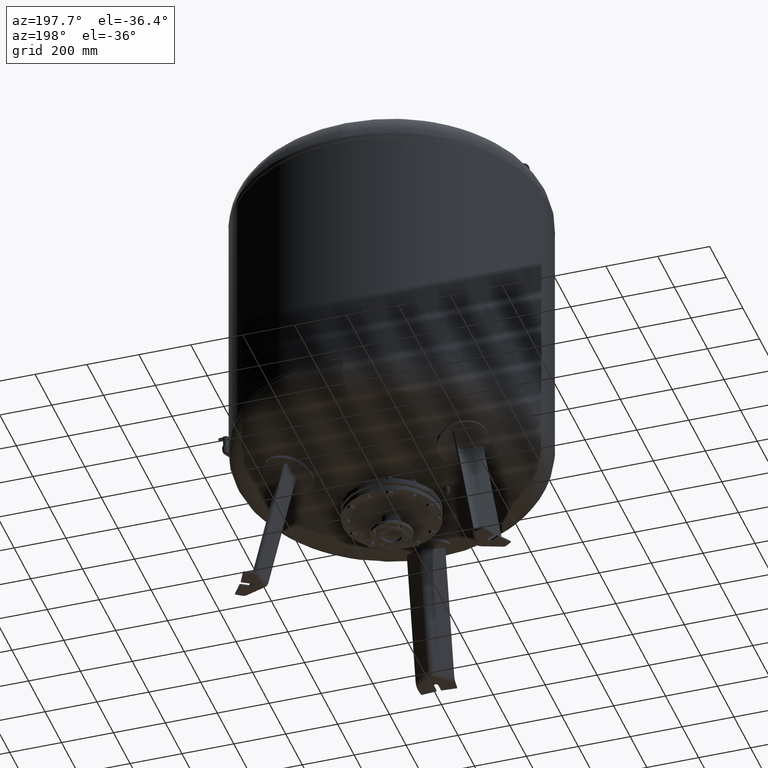
[diagram: clean part render]
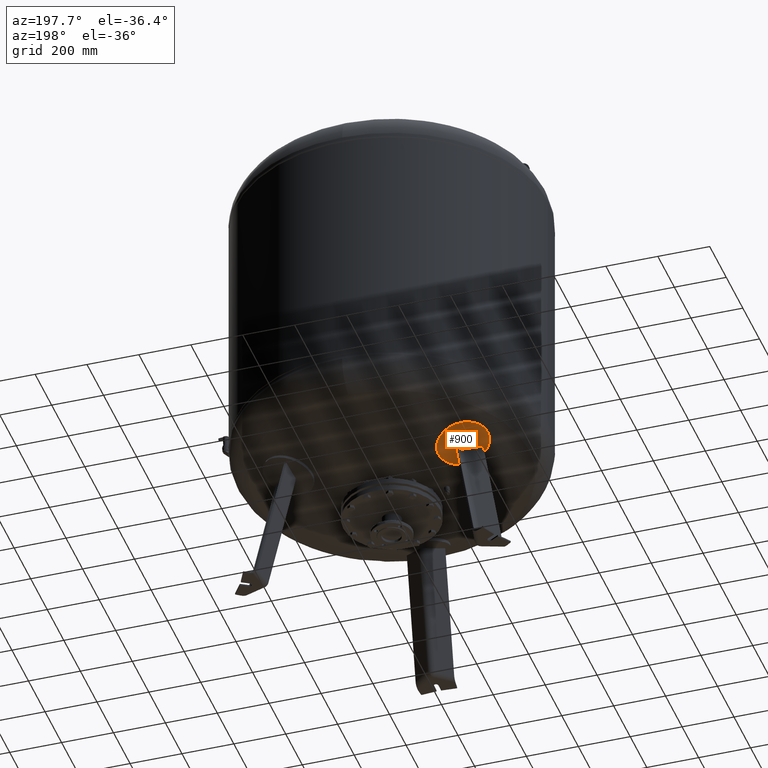
[diagram: same view with one face highlighted and labeled with its STEP entity id]
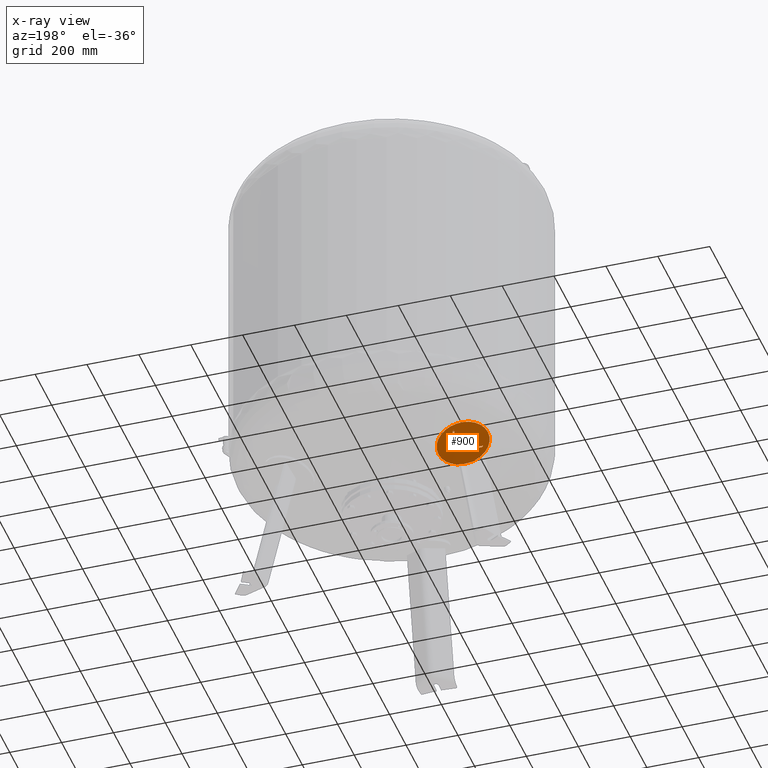
[diagram: x-ray of the same camera — body ghosted, the highlighted face saturated]
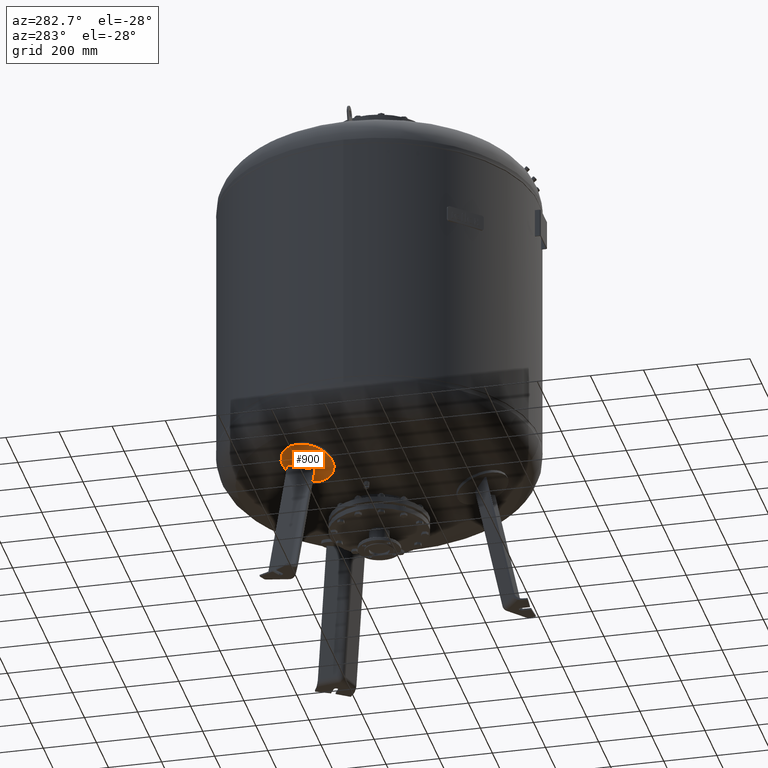
[diagram: same view with one face highlighted and labeled with its STEP entity id]
A machine part, auxiliary view. The second image highlights one B-rep face of the part: STEP entity #900.
The next image is the same camera in x-ray: the body ghosted, the highlighted face saturated — about 0% of this face is hidden behind the body in this view.
A second angle (auxiliary view) of the same face is appended — the face is thin or edge-on in the first view.
In plain terms, the highlighted spherical surface has radius 1006 mm.
Its self-contained STEP definition (entity closure, byte-faithful):
#130=CARTESIAN_POINT('',(-255.276761255100330,147.192965508267260,486.033440505856840));
#131=VERTEX_POINT('',#130);
#140=CARTESIAN_POINT('',(-419.045382498917260,241.744823068198970,551.147071397288300));
#141=VERTEX_POINT('',#140);
#142=CARTESIAN_POINT('',(-337.161071877008910,194.468894288233170,518.590255951572660));
#143=DIRECTION('',(-0.281950292423114,0.162784077228579,-0.945518575599317));
#144=DIRECTION('',(0.818843106219085,-0.472759287799659,-0.325568154457157));
#145=AXIS2_PLACEMENT_3D('',#142,#143,#144);
#146=CIRCLE('',#145,100.0);
#147=EDGE_CURVE('',#141,#131,#146,.T.);
#767=CARTESIAN_POINT('',(-54.923900003599442,31.519187131801345,1465.070880027170500));
#768=DIRECTION('',(-0.500000000000000,-0.866025403784438,-1.281861E-017));
#769=DIRECTION('',(0.818843106219085,-0.472759287799659,-0.325568154457157));
#770=AXIS2_PLACEMENT_3D('',#767,#768,#769);
#771=SPHERICAL_SURFACE('',#770,1006.0);
#772=CARTESIAN_POINT('',(-337.161071877008910,194.468894288233170,518.590255951572660));
#773=DIRECTION('',(-0.281950292423114,0.162784077228579,-0.945518575599317));
#774=DIRECTION('',(0.818843106219085,-0.472759287799659,-0.325568154457157));
#775=AXIS2_PLACEMENT_3D('',#772,#773,#774);
#776=CIRCLE('',#775,100.0);
#777=EDGE_CURVE('',#131,#141,#776,.T.);
#778=ORIENTED_EDGE('',*,*,#777,.T.);
#779=ORIENTED_EDGE('',*,*,#147,.T.);
#780=EDGE_LOOP('',(#778,#779));
#781=FACE_OUTER_BOUND('',#780,.T.);
#782=CARTESIAN_POINT('',(-325.379557651966650,169.225206742211610,505.942739782580020));
#783=VERTEX_POINT('',#782);
#784=CARTESIAN_POINT('',(-393.600983866293460,142.375144417631250,524.302688812935000));
#785=VERTEX_POINT('',#784);
#786=CARTESIAN_POINT('',(-75.615859376168203,91.022755047239741,1475.203780025492300));
#787=DIRECTION('',(-0.324282864533177,0.932535537409927,0.158802063077709));
#788=DIRECTION('',(-0.180056805991956,0.103955845408880,-0.978147600733805));
#789=AXIS2_PLACEMENT_3D('',#786,#787,#788);
#790=CIRCLE('',#789,1003.974348556914600);
#791=EDGE_CURVE('',#783,#785,#790,.T.);
#792=ORIENTED_EDGE('',*,*,#791,.F.);
#793=CARTESIAN_POINT('',(-309.242146051814070,197.173804724745480,505.947959126467590));
#794=VERTEX_POINT('',#793);
#795=CARTESIAN_POINT('',(-309.242146051814070,197.173804724745480,505.947959126467590));
#796=CARTESIAN_POINT('',(-309.163063668117330,196.667362939197030,505.839519935654040));
#797=CARTESIAN_POINT('',(-309.099489876659160,196.156939629008180,505.734934896781850));
#798=CARTESIAN_POINT('',(-308.953981830104850,194.594420953713100,505.429103824092690));
#799=CARTESIAN_POINT('',(-308.922454473519170,193.533735565852880,505.241116411709530));
#800=CARTESIAN_POINT('',(-308.993074655460190,191.412356006654390,504.904132145277800));
#801=CARTESIAN_POINT('',(-309.095270320789890,190.350212576807620,504.754905007621570));
#802=CARTESIAN_POINT('',(-309.431062941992540,188.245614701700790,504.498091049258280));
#803=CARTESIAN_POINT('',(-309.664664000571630,187.203160758028700,504.390505482463710));
#804=CARTESIAN_POINT('',(-310.256175923691220,185.159964409015630,504.218613051497190));
#805=CARTESIAN_POINT('',(-310.614143977389290,184.159062260994800,504.154295924989920));
#806=CARTESIAN_POINT('',(-311.442715335609990,182.219481341795810,504.068989992027010));
#807=CARTESIAN_POINT('',(-311.913332669533700,181.280808341221470,504.048006248182790));
#808=CARTESIAN_POINT('',(-312.951293272684270,179.483150457051830,504.047670768673360));
#809=CARTESIAN_POINT('',(-313.529888674724300,178.605049503326310,504.068378031877960));
#810=CARTESIAN_POINT('',(-314.797560410366370,176.915577940766840,504.153252291123410));
#811=CARTESIAN_POINT('',(-315.486624700107540,176.104198039953250,504.217414209798390));
#812=CARTESIAN_POINT('',(-316.963013097652720,174.568811842688060,504.389117041742050));
#813=CARTESIAN_POINT('',(-317.750447390605020,173.844675763198840,504.496668222473030));
#814=CARTESIAN_POINT('',(-319.408218660953030,172.500705832385170,504.753530564510750));
#815=CARTESIAN_POINT('',(-320.278553154731870,171.880868677880190,504.902840471794430));
#816=CARTESIAN_POINT('',(-322.083676095723150,170.758860268795530,505.240100544597230));
#817=CARTESIAN_POINT('',(-323.019700268691570,170.255921070576450,505.428281643566950));
#818=CARTESIAN_POINT('',(-324.440903625329840,169.604430845692430,505.732921779836370));
#819=CARTESIAN_POINT('',(-324.908133674332930,169.407325679647670,505.835954876961470));
#820=CARTESIAN_POINT('',(-325.379557651966650,169.225206742211610,505.942739782580020));
#821=B_SPLINE_CURVE_WITH_KNOTS('',3,(#795,#796,#797,#798,#799,#800,#801,#802,#803,#804,#805,#806,#807,#808,#809,#810,#811,#812,#813,#814,#815,#816,#817,#818,#819,#820),.UNSPECIFIED.,.F.,.U.,(4,2,2,2,2,2,2,2,2,2,2,2,4),(32.794903054826207,34.316215825106944,37.427572589502290,40.538929353897636,43.650286118292982,46.761642882688328,49.872999647083674,52.989036057429090,56.105072467774505,59.221108878119921,62.337145288465337,65.453181698810752,66.953203267256470),.UNSPECIFIED.);
#822=EDGE_CURVE('',#794,#783,#821,.T.);
#823=ORIENTED_EDGE('',*,*,#822,.F.);
#824=CARTESIAN_POINT('',(-320.096570269069050,269.678330582398080,524.326665410275270));
#825=VERTEX_POINT('',#824);
#826=CARTESIAN_POINT('',(-116.594257655732240,19.726790213880236,1475.169845689218200));
#827=DIRECTION('',(-0.969740897595359,-0.185430570007244,0.158802063077708));
#828=DIRECTION('',(-0.180056805991956,0.103955845408880,-0.978147600733805));
#829=AXIS2_PLACEMENT_3D('',#826,#827,#828);
#830=CIRCLE('',#829,1003.987906926445600);
#831=EDGE_CURVE('',#825,#794,#830,.T.);
#832=ORIENTED_EDGE('',*,*,#831,.F.);
#833=CARTESIAN_POINT('',(-326.337683684044410,272.517072802429600,526.832862714638170));
#834=VERTEX_POINT('',#833);
#835=CARTESIAN_POINT('',(-18.490390265466999,110.162111656697250,1466.722256883460400));
#836=DIRECTION('',(-0.420282416002408,-0.907193365623647,-0.019049623818306));
#837=DIRECTION('',(0.009563295541659,0.016564113765950,-0.999817070025078));
#838=AXIS2_PLACEMENT_3D('',#835,#836,#837);
#839=CIRCLE('',#838,1002.258032018108500);
#840=EDGE_CURVE('',#834,#825,#839,.T.);
#841=ORIENTED_EDGE('',*,*,#840,.F.);
#842=CARTESIAN_POINT('',(-315.671290026426850,200.885672729146960,508.325463444113210));
#843=VERTEX_POINT('',#842);
#844=CARTESIAN_POINT('',(-122.338869528974440,18.628324987996592,1476.110567297756700));
#845=DIRECTION('',(0.969740897595359,0.185430570007244,-0.158802063077709));
#846=DIRECTION('',(0.180056805991956,-0.103955845408880,0.978147600733806));
#847=AXIS2_PLACEMENT_3D('',#844,#845,#846);
#848=CIRCLE('',#847,1003.595123972834800);
#849=EDGE_CURVE('',#843,#834,#848,.T.);
#850=ORIENTED_EDGE('',*,*,#849,.F.);
#851=CARTESIAN_POINT('',(-331.808702377670270,172.937075180255650,508.320240019970470));
#852=VERTEX_POINT('',#851);
#853=CARTESIAN_POINT('',(-331.808702377670270,172.937075180255650,508.320240019970470));
#854=CARTESIAN_POINT('',(-331.546519475813170,173.038612697864440,508.259372289933540));
#855=CARTESIAN_POINT('',(-331.286739663182120,173.144363590979540,508.199952659748990));
#856=CARTESIAN_POINT('',(-330.011428829325150,173.688670958514480,507.912602619461320));
#857=CARTESIAN_POINT('',(-329.038050774177290,174.185705033286180,507.707401644527640));
#858=CARTESIAN_POINT('',(-327.235940967907650,175.248475316531990,507.352151483820360));
#859=CARTESIAN_POINT('',(-326.329554279660670,175.859068307331630,507.186631956602980));
#860=CARTESIAN_POINT('',(-324.568943989502600,177.226076869395290,506.896409636033180));
#861=CARTESIAN_POINT('',(-323.714728072690150,177.982503185788770,506.771710833648460));
#862=CARTESIAN_POINT('',(-322.112119881016040,179.604733601374280,506.572869613931570));
#863=CARTESIAN_POINT('',(-321.363090904517550,180.471185706098030,506.498648705277670));
#864=CARTESIAN_POINT('',(-320.006200338968710,182.260457440244010,506.402164326406820));
#865=CARTESIAN_POINT('',(-319.398331988079800,183.183271782971020,506.379897910233810));
#866=CARTESIAN_POINT('',(-318.341139962768520,185.014236718257170,506.380239856651490));
#867=CARTESIAN_POINT('',(-317.846375659886120,186.000757395640530,506.402806025775360));
#868=CARTESIAN_POINT('',(-316.975889213664290,188.067715347938760,506.499769920901030));
#869=CARTESIAN_POINT('',(-316.600175170951620,189.148155893692600,506.574170645728710));
#870=CARTESIAN_POINT('',(-315.996493425836430,191.344205623475630,506.773237798320680));
#871=CARTESIAN_POINT('',(-315.768283423039520,192.460686887187530,506.897982609829510));
#872=CARTESIAN_POINT('',(-315.463904466586540,194.665986364416310,507.188169031350010));
#873=CARTESIAN_POINT('',(-315.387722188888120,195.754803271306570,507.353606595328530));
#874=CARTESIAN_POINT('',(-315.366943985116450,197.844174277230140,507.708592610853430));
#875=CARTESIAN_POINT('',(-315.422265035923260,198.934332790210650,507.913606462838800));
#876=CARTESIAN_POINT('',(-315.587984997366160,200.316442869307880,508.202129029618390));
#877=CARTESIAN_POINT('',(-315.627092896216940,200.601075048771240,508.263037646980650));
#878=CARTESIAN_POINT('',(-315.671290026426850,200.885672729146960,508.325463444113210));
#879=B_SPLINE_CURVE_WITH_KNOTS('',3,(#853,#854,#855,#856,#857,#858,#859,#860,#861,#862,#863,#864,#865,#866,#867,#868,#869,#870,#871,#872,#873,#874,#875,#876,#877,#878),.UNSPECIFIED.,.F.,.U.,(4,2,2,2,2,2,2,2,2,2,2,2,4),(34.351574704530236,35.157137084380075,38.350021909641775,41.523419197935439,44.696816486229096,47.870213774522753,51.043611062816417,54.212988341383024,57.382365619949638,60.551742898516245,63.721120177082852,66.909986527717621,67.735047143007677),.UNSPECIFIED.);
#880=EDGE_CURVE('',#852,#843,#879,.T.);
#881=ORIENTED_EDGE('',*,*,#880,.F.);
#882=CARTESIAN_POINT('',(-399.179928245355650,146.360715746824270,526.809077370483350));
#883=VERTEX_POINT('',#882);
#884=CARTESIAN_POINT('',(-77.536866522000253,96.546967477290963,1476.144501634031000));
#885=DIRECTION('',(0.324282864533177,-0.932535537409927,-0.158802063077709));
#886=DIRECTION('',(0.180056805991956,-0.103955845408880,0.978147600733805));
#887=AXIS2_PLACEMENT_3D('',#884,#885,#886);
#888=CIRCLE('',#887,1003.580298946269700);
#889=EDGE_CURVE('',#883,#852,#888,.T.);
#890=ORIENTED_EDGE('',*,*,#889,.F.);
#891=CARTESIAN_POINT('',(-104.624184539388920,-39.085087972495501,1466.715976719377300));
#892=DIRECTION('',(0.575511292773579,0.817571931833808,-0.019049623818306));
#893=DIRECTION('',(0.009563295541659,0.016564113765950,0.999817070025078));
#894=AXIS2_PLACEMENT_3D('',#891,#892,#893);
#895=CIRCLE('',#894,1002.286491833014600);
#896=EDGE_CURVE('',#785,#883,#895,.T.);
#897=ORIENTED_EDGE('',*,*,#896,.F.);
#898=EDGE_LOOP('',(#792,#823,#832,#841,#850,#881,#890,#897));
#899=FACE_BOUND('',#898,.T.);
#900=ADVANCED_FACE('',(#781,#899),#771,.T.);